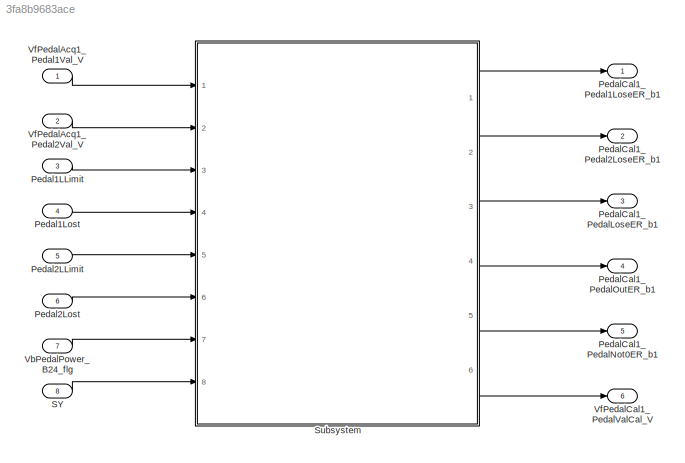
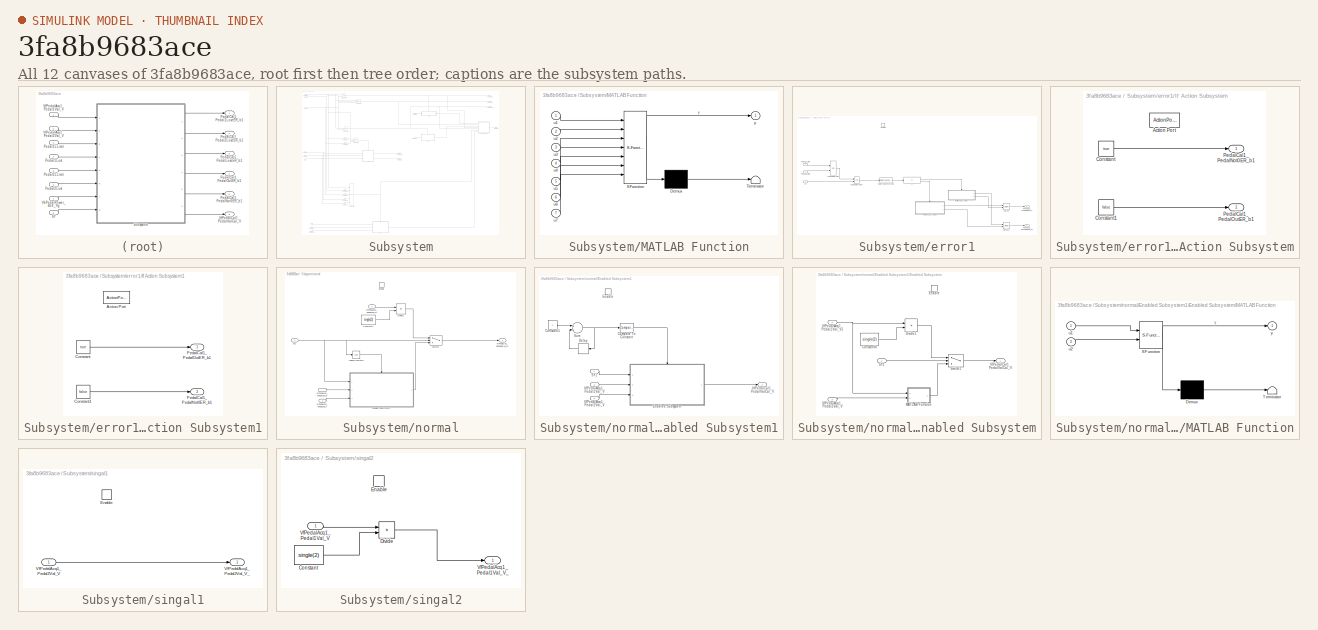
[diagram: thumbnail index - all 12 canvases of the model, root first then tree order]
MODEL slx_3fa8b9683ace
KIND model
CONFIG AbsTol = auto
CONFIG EnableMultiTasking = off
CONFIG FixedStep = auto
CONFIG MaxStep = auto
CONFIG MinStep = auto
CONFIG RelTol = 1e-3
CONFIG SampleTimeConstraint = Unconstrained
CONFIG Solver = FixedStepDiscrete
CONFIG SolverName = FixedStepDiscrete
CONFIG StartTime = 0.0
CONFIG StopTime = 10.0
BLOCK [Inport] Pedal1LLimit
  IconDisplay = Port number
  Port = 3
BLOCK [Inport] Pedal1Lost
  IconDisplay = Port number
  Port = 4
BLOCK [Inport] Pedal2LLimit
  IconDisplay = Port number
  Port = 5
BLOCK [Inport] Pedal2Lost
  IconDisplay = Port number
  Port = 6
BLOCK [Outport] PedalCal1_Pedal1LoseER_b1
  IconDisplay = Port number
BLOCK [Outport] PedalCal1_Pedal2LoseER_b1
  IconDisplay = Port number
  Port = 2
BLOCK [Outport] PedalCal1_PedalLoseER_b1
  IconDisplay = Port number
  Port = 3
BLOCK [Outport] PedalCal1_PedalNot0ER_b1
  IconDisplay = Port number
  Port = 5
BLOCK [Outport] PedalCal1_PedalOutER_b1
  IconDisplay = Port number
  Port = 4
BLOCK [Inport] SY
  IconDisplay = Port number
  Port = 8
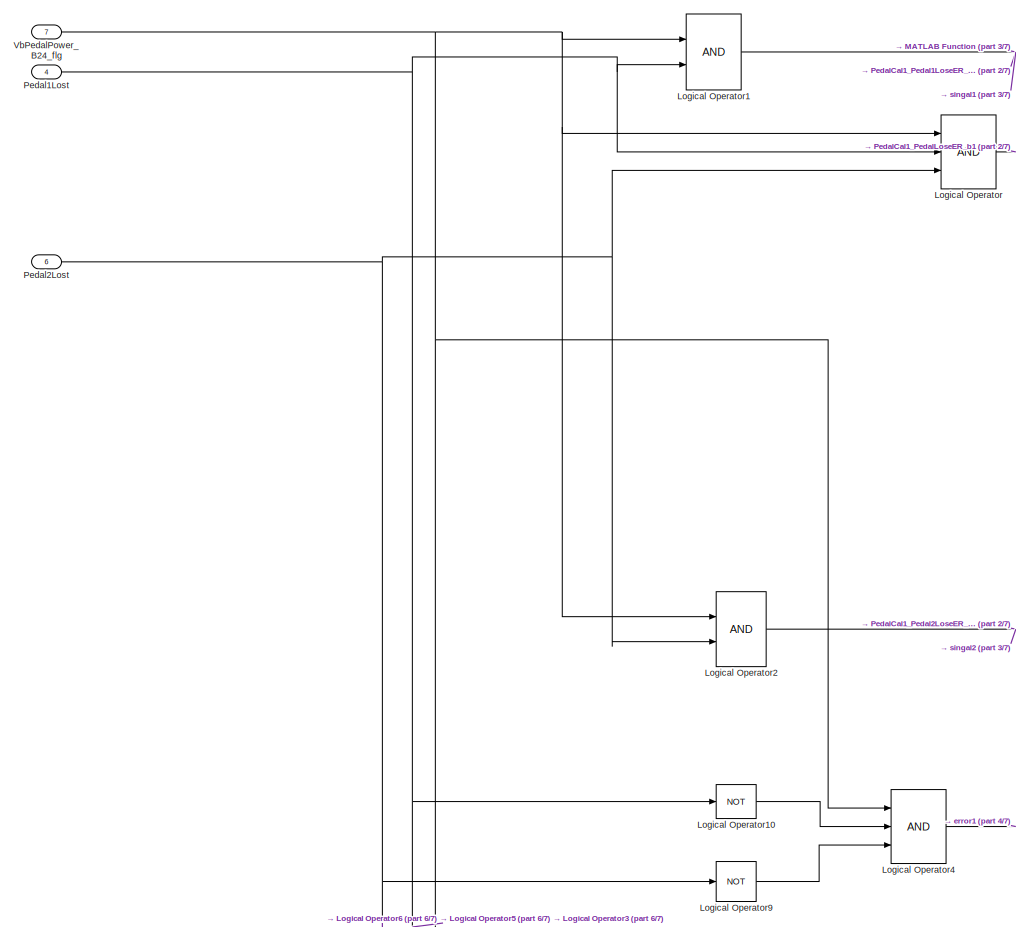
[diagram: Subsystem - part 1/7, top left region]
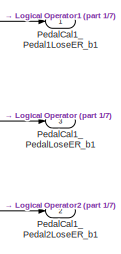
[diagram: Subsystem - part 2/7, top right region]
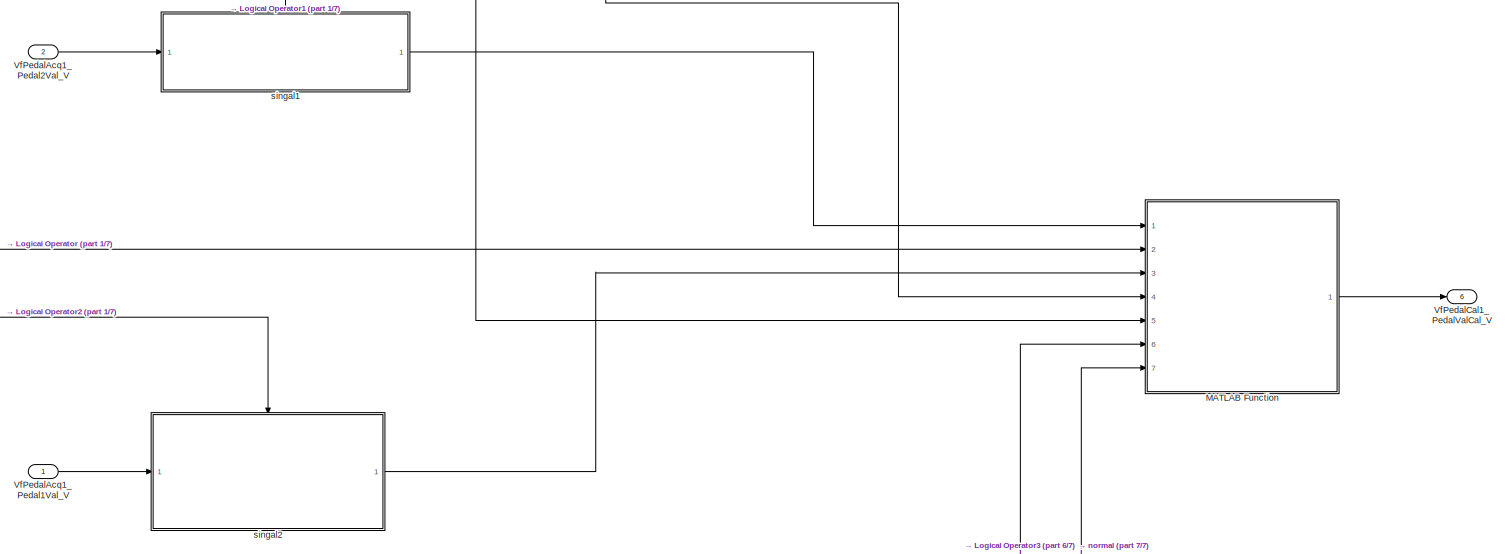
[diagram: Subsystem - part 3/7, top right region]
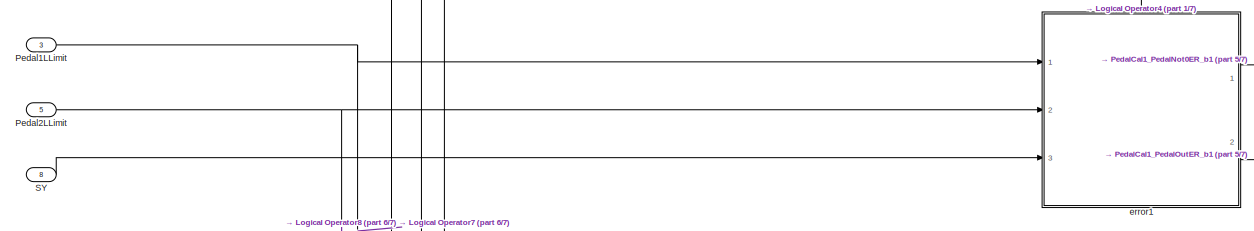
[diagram: Subsystem - part 4/7, middle left region]
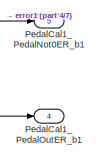
[diagram: Subsystem - part 5/7, central region]
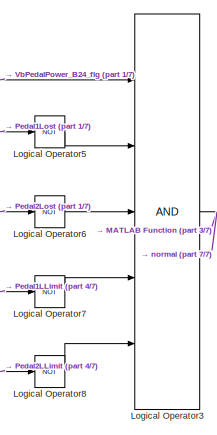
[diagram: Subsystem - part 6/7, bottom left region]
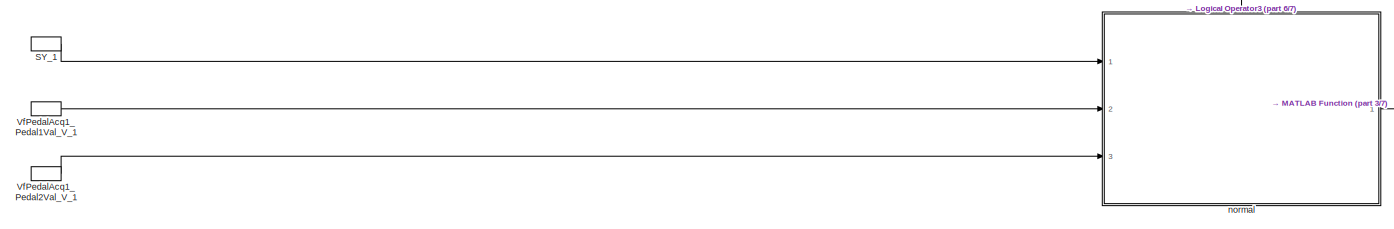
[diagram: Subsystem - part 7/7, bottom left region]
BLOCK [SubSystem] Subsystem
  Ports = [8, 6]
  RequestExecContextInheritance = off
  TreatAsAtomicUnit = on
BLOCK [Logic] Subsystem/Logical Operator
  AllPortsSameDT = off
  Inputs = 3
  OutDataTypeStr = boolean
  Ports = [3, 1]
BLOCK [Logic] Subsystem/Logical Operator1
  AllPortsSameDT = off
  OutDataTypeStr = boolean
  Ports = [2, 1]
BLOCK [Logic] Subsystem/Logical Operator10
  AllPortsSameDT = off
  Inputs = 3
  Operator = NOT
  OutDataTypeStr = boolean
  Ports = [1, 1]
BLOCK [Logic] Subsystem/Logical Operator2
  AllPortsSameDT = off
  OutDataTypeStr = boolean
  Ports = [2, 1]
BLOCK [Logic] Subsystem/Logical Operator3
  AllPortsSameDT = off
  Inputs = 5
  OutDataTypeStr = boolean
  Ports = [5, 1]
BLOCK [Logic] Subsystem/Logical Operator4
  AllPortsSameDT = off
  Inputs = 3
  OutDataTypeStr = boolean
  Ports = [3, 1]
BLOCK [Logic] Subsystem/Logical Operator5
  AllPortsSameDT = off
  Operator = NOT
  OutDataTypeStr = boolean
  Ports = [1, 1]
BLOCK [Logic] Subsystem/Logical Operator6
  AllPortsSameDT = off
  Operator = NOT
  OutDataTypeStr = boolean
  Ports = [1, 1]
BLOCK [Logic] Subsystem/Logical Operator7
  AllPortsSameDT = off
  Operator = NOT
  OutDataTypeStr = boolean
  Ports = [1, 1]
BLOCK [Logic] Subsystem/Logical Operator8
  AllPortsSameDT = off
  Operator = NOT
  OutDataTypeStr = boolean
  Ports = [1, 1]
BLOCK [Logic] Subsystem/Logical Operator9
  AllPortsSameDT = off
  Inputs = 3
  Operator = NOT
  OutDataTypeStr = boolean
  Ports = [1, 1]
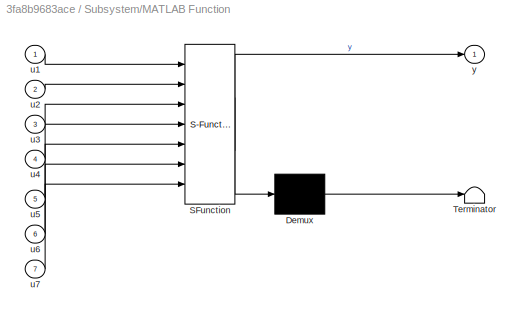
BLOCK [SubSystem] Subsystem/MATLAB Function
  ErrorFcn = Stateflow.Translate.translate
  PermitHierarchicalResolution = ExplicitOnly
  Ports = [7, 1]
  RequestExecContextInheritance = off
  SFBlockType = MATLAB Function
  TreatAsAtomicUnit = on
BLOCK [Demux] Subsystem/MATLAB Function/ Demux 
  Outputs = 1
  Ports = [1, 1]
BLOCK [S-Function] Subsystem/MATLAB Function/ SFunction 
  EnableBusSupport = on
  FunctionName = sf_sfun
  PortCounts = [7 2]
  Ports = [7, 2]
  SFcnIsStateOwnerBlock = off
  SFunctionDeploymentMode = off
  Tag = Stateflow S-Function pedal_req_02 1
BLOCK [Terminator] Subsystem/MATLAB Function/ Terminator 
BLOCK [Inport] Subsystem/MATLAB Function/u1
  IconDisplay = Port number
BLOCK [Inport] Subsystem/MATLAB Function/u2
  IconDisplay = Port number
  Port = 2
BLOCK [Inport] Subsystem/MATLAB Function/u3
  IconDisplay = Port number
  Port = 3
BLOCK [Inport] Subsystem/MATLAB Function/u4
  IconDisplay = Port number
  Port = 4
BLOCK [Inport] Subsystem/MATLAB Function/u5
  IconDisplay = Port number
  Port = 5
BLOCK [Inport] Subsystem/MATLAB Function/u6
  IconDisplay = Port number
  Port = 6
BLOCK [Inport] Subsystem/MATLAB Function/u7
  IconDisplay = Port number
  Port = 7
BLOCK [Outport] Subsystem/MATLAB Function/y
  IconDisplay = Port number
BLOCK [Inport] Subsystem/Pedal1LLimit
  IconDisplay = Port number
  Port = 3
BLOCK [Inport] Subsystem/Pedal1Lost
  IconDisplay = Port number
  Port = 4
BLOCK [Inport] Subsystem/Pedal2LLimit
  IconDisplay = Port number
  Port = 5
BLOCK [Inport] Subsystem/Pedal2Lost
  IconDisplay = Port number
  Port = 6
BLOCK [Outport] Subsystem/PedalCal1_Pedal1LoseER_b1
  IconDisplay = Port number
BLOCK [Outport] Subsystem/PedalCal1_Pedal2LoseER_b1
  IconDisplay = Port number
  Port = 2
BLOCK [Outport] Subsystem/PedalCal1_PedalLoseER_b1
  IconDisplay = Port number
  Port = 3
BLOCK [Outport] Subsystem/PedalCal1_PedalNot0ER_b1
  IconDisplay = Port number
  Port = 5
BLOCK [Outport] Subsystem/PedalCal1_PedalOutER_b1
  IconDisplay = Port number
  Port = 4
BLOCK [Inport] Subsystem/SY
  IconDisplay = Port number
  Port = 8
BLOCK [InportShadow] Subsystem/SY_1
  IconDisplay = Port number
  Port = 8
BLOCK [Inport] Subsystem/VbPedalPower_B24_flg
  IconDisplay = Port number
  Port = 7
BLOCK [Inport] Subsystem/VfPedalAcq1_Pedal1Val_V
  IconDisplay = Port number
BLOCK [InportShadow] Subsystem/VfPedalAcq1_Pedal1Val_V_1
  IconDisplay = Port number
BLOCK [Inport] Subsystem/VfPedalAcq1_Pedal2Val_V
  IconDisplay = Port number
  Port = 2
BLOCK [InportShadow] Subsystem/VfPedalAcq1_Pedal2Val_V_1
  IconDisplay = Port number
  Port = 2
BLOCK [Outport] Subsystem/VfPedalCal1_PedalValCal_V
  IconDisplay = Port number
  Port = 6
BLOCK [SubSystem] Subsystem/error1
  Ports = [3, 2, 1]
  RequestExecContextInheritance = off
  TreatAsAtomicUnit = on
BLOCK [DataTypeConversion] Subsystem/error1/Data Type Conversion
  OutDataTypeStr = int8
  RndMeth = Floor
  SaturateOnIntegerOverflow = off
BLOCK [EnablePort] Subsystem/error1/Enable
  Ports = []
BLOCK [If] Subsystem/error1/If
  IfExpression = u1 == 1
  Ports = [1, 2]
BLOCK [SubSystem] Subsystem/error1/If Action Subsystem
  Ports = [0, 2, 0, 0, 0, 0, 0, 1]
  RequestExecContextInheritance = off
  TreatAsAtomicUnit = on
BLOCK [ActionPort] Subsystem/error1/If Action Subsystem/Action Port
  ActionType = then
BLOCK [Constant] Subsystem/error1/If Action Subsystem/Constant
  Value = true
BLOCK [Constant] Subsystem/error1/If Action Subsystem/Constant1
  Value = false
BLOCK [Outport] Subsystem/error1/If Action Subsystem/PedalCal1_PedalNot0ER_b1
  IconDisplay = Port number
BLOCK [Outport] Subsystem/error1/If Action Subsystem/PedalCal1_PedalOutER_b1
  IconDisplay = Port number
  Port = 2
BLOCK [SubSystem] Subsystem/error1/If Action Subsystem1
  Ports = [0, 2, 0, 0, 0, 0, 0, 1]
  RequestExecContextInheritance = off
  TreatAsAtomicUnit = on
BLOCK [ActionPort] Subsystem/error1/If Action Subsystem1/Action Port
  ActionType = else
BLOCK [Constant] Subsystem/error1/If Action Subsystem1/Constant
  Value = true
BLOCK [Constant] Subsystem/error1/If Action Subsystem1/Constant1
  Value = false
BLOCK [Outport] Subsystem/error1/If Action Subsystem1/PedalCal1_PedalNot0ER_b1
  IconDisplay = Port number
  Port = 2
BLOCK [Outport] Subsystem/error1/If Action Subsystem1/PedalCal1_PedalOutER_b1
  IconDisplay = Port number
BLOCK [Logic] Subsystem/error1/Logical Operator
  AllPortsSameDT = off
  Operator = OR
  OutDataTypeStr = boolean
  Ports = [2, 1]
BLOCK [Logic] Subsystem/error1/Logical Operator1
  AllPortsSameDT = off
  OutDataTypeStr = boolean
  Ports = [2, 1]
BLOCK [Merge] Subsystem/error1/Merge
  Ports = [2, 1]
BLOCK [Merge] Subsystem/error1/Merge1
  Ports = [2, 1]
BLOCK [Inport] Subsystem/error1/Pedal1LLimit
  IconDisplay = Port number
BLOCK [Inport] Subsystem/error1/Pedal2LLimit
  IconDisplay = Port number
  Port = 2
BLOCK [Outport] Subsystem/error1/PedalCal1_PedalNot0ER_b1
  IconDisplay = Port number
BLOCK [Outport] Subsystem/error1/PedalCal1_PedalOutER_b1
  IconDisplay = Port number
  Port = 2
BLOCK [Inport] Subsystem/error1/SY
  IconDisplay = Port number
  Port = 3
BLOCK [SubSystem] Subsystem/normal
  Ports = [3, 1, 1]
  RequestExecContextInheritance = off
  TreatAsAtomicUnit = on
BLOCK [Constant] Subsystem/normal/Constant4
  Value = single(2)
BLOCK [Product] Subsystem/normal/Divide1
  InputSameDT = off
  Inputs = */
  OutDataTypeStr = Inherit: Inherit via internal rule
  Ports = [2, 1]
  RndMeth = Floor
  SaturateOnIntegerOverflow = off
BLOCK [EnablePort] Subsystem/normal/Enable
  Ports = []
BLOCK [SubSystem] Subsystem/normal/Enabled Subsystem1
  Ports = [3, 1, 1]
  RequestExecContextInheritance = off
  TreatAsAtomicUnit = on
BLOCK [Reference] Subsystem/normal/Enabled Subsystem1/Compare To Constant  REF=simulink/Logic and Bit
Operations/Compare
To Constant
  Ports = [1, 1]
  SourceBlock = simulink/Logic and Bit\nOperations/Compare\nTo Constant
  SourceProductBaseCode = SL
  SourceProductName = Simulink
  SourceType = Compare To Constant
BLOCK [Constant] Subsystem/normal/Enabled Subsystem1/Constant1
BLOCK [Delay] Subsystem/normal/Enabled Subsystem1/Delay
  DelayLength = 1
  InitialCondition = 0
  InputPortMap = u0
  Ports = [1, 1]
BLOCK [EnablePort] Subsystem/normal/Enabled Subsystem1/Enable
  Ports = []
BLOCK [SubSystem] Subsystem/normal/Enabled Subsystem1/Enabled Subsystem
  Ports = [3, 1, 1]
  RequestExecContextInheritance = off
  TreatAsAtomicUnit = on
BLOCK [Constant] Subsystem/normal/Enabled Subsystem1/Enabled Subsystem/Constant4
  Value = single(2)
BLOCK [Product] Subsystem/normal/Enabled Subsystem1/Enabled Subsystem/Divide1
  InputSameDT = off
  Inputs = */
  OutDataTypeStr = Inherit: Inherit via internal rule
  Ports = [2, 1]
  RndMeth = Floor
  SaturateOnIntegerOverflow = off
BLOCK [EnablePort] Subsystem/normal/Enabled Subsystem1/Enabled Subsystem/Enable
  Ports = []
BLOCK [SubSystem] Subsystem/normal/Enabled Subsystem1/Enabled Subsystem/MATLAB Function
  ErrorFcn = Stateflow.Translate.translate
  PermitHierarchicalResolution = ExplicitOnly
  Ports = [2, 1]
  RequestExecContextInheritance = off
  SFBlockType = MATLAB Function
  TreatAsAtomicUnit = on
BLOCK [Demux] Subsystem/normal/Enabled Subsystem1/Enabled Subsystem/MATLAB Function/ Demux 
  Outputs = 1
  Ports = [1, 1]
BLOCK [S-Function] Subsystem/normal/Enabled Subsystem1/Enabled Subsystem/MATLAB Function/ SFunction 
  EnableBusSupport = on
  FunctionName = sf_sfun
  PortCounts = [2 2]
  Ports = [2, 2]
  SFcnIsStateOwnerBlock = off
  SFunctionDeploymentMode = off
  Tag = Stateflow S-Function pedal_req_02 3
BLOCK [Terminator] Subsystem/normal/Enabled Subsystem1/Enabled Subsystem/MATLAB Function/ Terminator 
BLOCK [Inport] Subsystem/normal/Enabled Subsystem1/Enabled Subsystem/MATLAB Function/u1
  IconDisplay = Port number
BLOCK [Inport] Subsystem/normal/Enabled Subsystem1/Enabled Subsystem/MATLAB Function/u2
  IconDisplay = Port number
  Port = 2
BLOCK [Outport] Subsystem/normal/Enabled Subsystem1/Enabled Subsystem/MATLAB Function/y
  IconDisplay = Port number
BLOCK [Inport] Subsystem/normal/Enabled Subsystem1/Enabled Subsystem/SY1
  IconDisplay = Port number
BLOCK [Switch] Subsystem/normal/Enabled Subsystem1/Enabled Subsystem/Switch1
  Criteria = u2 > Threshold
  InputSameDT = off
  SaturateOnIntegerOverflow = off
BLOCK [Inport] Subsystem/normal/Enabled Subsystem1/Enabled Subsystem/VfPedalAcq1_Pedal1Val_V1
  IconDisplay = Port number
  Port = 2
BLOCK [Inport] Subsystem/normal/Enabled Subsystem1/Enabled Subsystem/VfPedalAcq1_Pedal2Val_V
  IconDisplay = Port number
  Port = 3
BLOCK [Outport] Subsystem/normal/Enabled Subsystem1/Enabled Subsystem/VfPedalCal1_PedalValCal_V
  IconDisplay = Port number
BLOCK [Inport] Subsystem/normal/Enabled Subsystem1/SY1
  IconDisplay = Port number
BLOCK [Sum] Subsystem/normal/Enabled Subsystem1/Sum
  InputSameDT = off
  OutDataTypeStr = Inherit: Inherit via internal rule
  Ports = [2, 1]
  SaturateOnIntegerOverflow = off
BLOCK [Inport] Subsystem/normal/Enabled Subsystem1/VfPedalAcq1_Pedal1Val_V
  IconDisplay = Port number
  Port = 2
BLOCK [Inport] Subsystem/normal/Enabled Subsystem1/VfPedalAcq1_Pedal2Val_V
  IconDisplay = Port number
  Port = 3
BLOCK [Outport] Subsystem/normal/Enabled Subsystem1/VfPedalCal1_PedalValCal_V
  IconDisplay = Port number
BLOCK [Logic] Subsystem/normal/Logical Operator
  AllPortsSameDT = off
  Operator = NOT
  OutDataTypeStr = boolean
  Ports = [1, 1]
BLOCK [Inport] Subsystem/normal/SY1
  IconDisplay = Port number
BLOCK [Switch] Subsystem/normal/Switch1
  InputSameDT = off
  SaturateOnIntegerOverflow = off
  Threshold = 1
BLOCK [Inport] Subsystem/normal/VfPedalAcq1_Pedal1Val_V1
  IconDisplay = Port number
  Port = 2
BLOCK [InportShadow] Subsystem/normal/VfPedalAcq1_Pedal1Val_V2
  IconDisplay = Port number
  Port = 2
BLOCK [Inport] Subsystem/normal/VfPedalAcq1_Pedal2Val_V
  IconDisplay = Port number
  Port = 3
BLOCK [Outport] Subsystem/normal/VfPedalCal1_PedalValCal_V1
  IconDisplay = Port number
BLOCK [SubSystem] Subsystem/singal1
  Ports = [1, 1, 1]
  RequestExecContextInheritance = off
  TreatAsAtomicUnit = on
BLOCK [EnablePort] Subsystem/singal1/Enable
  Ports = []
BLOCK [Inport] Subsystem/singal1/VfPedalAcq1_Pedal2Val_V
  IconDisplay = Port number
BLOCK [Outport] Subsystem/singal1/VfPedalAcq1_Pedal2Val_V_
  IconDisplay = Port number
BLOCK [SubSystem] Subsystem/singal2
  Ports = [1, 1, 1]
  RequestExecContextInheritance = off
  TreatAsAtomicUnit = on
BLOCK [Constant] Subsystem/singal2/Constant
  Value = single(2)
BLOCK [Product] Subsystem/singal2/Divide
  InputSameDT = off
  Inputs = */
  OutDataTypeStr = Inherit: Inherit via internal rule
  Ports = [2, 1]
  RndMeth = Floor
  SaturateOnIntegerOverflow = off
BLOCK [EnablePort] Subsystem/singal2/Enable
  Ports = []
BLOCK [Inport] Subsystem/singal2/VfPedalAcq1_Pedal1Val_V
  IconDisplay = Port number
BLOCK [Outport] Subsystem/singal2/VfPedalAcq1_Pedal1Val_V_
  IconDisplay = Port number
BLOCK [Inport] VbPedalPower_B24_flg
  IconDisplay = Port number
  Port = 7
BLOCK [Inport] VfPedalAcq1_Pedal1Val_V
  IconDisplay = Port number
BLOCK [Inport] VfPedalAcq1_Pedal2Val_V
  IconDisplay = Port number
  Port = 2
BLOCK [Outport] VfPedalCal1_PedalValCal_V
  IconDisplay = Port number
  Port = 6
LINE Pedal1LLimit:1 -> Subsystem:3
LINE Pedal1Lost:1 -> Subsystem:4
LINE Pedal2LLimit:1 -> Subsystem:5
LINE Pedal2Lost:1 -> Subsystem:6
LINE SY:1 -> Subsystem:8
LINE Subsystem/Logical Operator10:1 -> Subsystem/Logical Operator4:2
NET Subsystem/Logical Operator1:1 -> Subsystem/MATLAB Function:4, Subsystem/PedalCal1_Pedal1LoseER_b1:1, Subsystem/singal1:enable
NET Subsystem/Logical Operator2:1 -> Subsystem/MATLAB Function:5, Subsystem/PedalCal1_Pedal2LoseER_b1:1, Subsystem/singal2:enable
NET Subsystem/Logical Operator3:1 -> Subsystem/MATLAB Function:6, Subsystem/normal:enable
LINE Subsystem/Logical Operator4:1 -> Subsystem/error1:enable
LINE Subsystem/Logical Operator5:1 -> Subsystem/Logical Operator3:2
LINE Subsystem/Logical Operator6:1 -> Subsystem/Logical Operator3:3
LINE Subsystem/Logical Operator7:1 -> Subsystem/Logical Operator3:4
LINE Subsystem/Logical Operator8:1 -> Subsystem/Logical Operator3:5
LINE Subsystem/Logical Operator9:1 -> Subsystem/Logical Operator4:3
NET Subsystem/Logical Operator:1 -> Subsystem/MATLAB Function:2, Subsystem/PedalCal1_PedalLoseER_b1:1
LINE Subsystem/MATLAB Function:1 -> Subsystem/VfPedalCal1_PedalValCal_V:1
NET Subsystem/Pedal1LLimit:1 -> Subsystem/Logical Operator7:1, Subsystem/error1:1
NET Subsystem/Pedal1Lost:1 -> Subsystem/Logical Operator10:1, Subsystem/Logical Operator1:2, Subsystem/Logical Operator5:1, Subsystem/Logical Operator:2
NET Subsystem/Pedal2LLimit:1 -> Subsystem/Logical Operator8:1, Subsystem/error1:2
NET Subsystem/Pedal2Lost:1 -> Subsystem/Logical Operator2:2, Subsystem/Logical Operator6:1, Subsystem/Logical Operator9:1, Subsystem/Logical Operator:3
LINE Subsystem/SY:1 -> Subsystem/error1:3
LINE Subsystem/SY_1:1 -> Subsystem/normal:1
NET Subsystem/VbPedalPower_B24_flg:1 -> Subsystem/Logical Operator1:1, Subsystem/Logical Operator2:1, Subsystem/Logical Operator3:1, Subsystem/Logical Operator4:1, Subsystem/Logical Operator:1
LINE Subsystem/VfPedalAcq1_Pedal1Val_V:1 -> Subsystem/singal2:1
LINE Subsystem/VfPedalAcq1_Pedal1Val_V_1:1 -> Subsystem/normal:2
LINE Subsystem/VfPedalAcq1_Pedal2Val_V:1 -> Subsystem/singal1:1
LINE Subsystem/VfPedalAcq1_Pedal2Val_V_1:1 -> Subsystem/normal:3
LINE Subsystem/error1/Data Type Conversion:1 -> Subsystem/error1/If:1
LINE Subsystem/error1/If Action Subsystem/Constant1:1 -> Subsystem/error1/If Action Subsystem/PedalCal1_PedalOutER_b1:1
LINE Subsystem/error1/If Action Subsystem/Constant:1 -> Subsystem/error1/If Action Subsystem/PedalCal1_PedalNot0ER_b1:1
LINE Subsystem/error1/If Action Subsystem1/Constant1:1 -> Subsystem/error1/If Action Subsystem1/PedalCal1_PedalNot0ER_b1:1
LINE Subsystem/error1/If Action Subsystem1/Constant:1 -> Subsystem/error1/If Action Subsystem1/PedalCal1_PedalOutER_b1:1
LINE Subsystem/error1/If Action Subsystem1:1 -> Subsystem/error1/Merge:1
LINE Subsystem/error1/If Action Subsystem1:2 -> Subsystem/error1/Merge1:2
LINE Subsystem/error1/If Action Subsystem:1 -> Subsystem/error1/Merge1:1
LINE Subsystem/error1/If Action Subsystem:2 -> Subsystem/error1/Merge:2
LINE Subsystem/error1/If:1 -> Subsystem/error1/If Action Subsystem:ifaction
LINE Subsystem/error1/If:2 -> Subsystem/error1/If Action Subsystem1:ifaction
LINE Subsystem/error1/Logical Operator1:1 -> Subsystem/error1/Data Type Conversion:1
LINE Subsystem/error1/Logical Operator:1 -> Subsystem/error1/Logical Operator1:1
LINE Subsystem/error1/Merge1:1 -> Subsystem/error1/PedalCal1_PedalNot0ER_b1:1
LINE Subsystem/error1/Merge:1 -> Subsystem/error1/PedalCal1_PedalOutER_b1:1
LINE Subsystem/error1/Pedal1LLimit:1 -> Subsystem/error1/Logical Operator:1
LINE Subsystem/error1/Pedal2LLimit:1 -> Subsystem/error1/Logical Operator:2
LINE Subsystem/error1/SY:1 -> Subsystem/error1/Logical Operator1:2
LINE Subsystem/error1:1 -> Subsystem/PedalCal1_PedalNot0ER_b1:1
LINE Subsystem/error1:2 -> Subsystem/PedalCal1_PedalOutER_b1:1
LINE Subsystem/normal/Constant4:1 -> Subsystem/normal/Divide1:2
LINE Subsystem/normal/Divide1:1 -> Subsystem/normal/Switch1:1
LINE Subsystem/normal/Enabled Subsystem1/Compare To Constant:1 -> Subsystem/normal/Enabled Subsystem1/Enabled Subsystem:enable
LINE Subsystem/normal/Enabled Subsystem1/Constant1:1 -> Subsystem/normal/Enabled Subsystem1/Sum:1
LINE Subsystem/normal/Enabled Subsystem1/Delay:1 -> Subsystem/normal/Enabled Subsystem1/Sum:2
LINE Subsystem/normal/Enabled Subsystem1/Enabled Subsystem/Constant4:1 -> Subsystem/normal/Enabled Subsystem1/Enabled Subsystem/Divide1:2
LINE Subsystem/normal/Enabled Subsystem1/Enabled Subsystem/Divide1:1 -> Subsystem/normal/Enabled Subsystem1/Enabled Subsystem/Switch1:1
LINE Subsystem/normal/Enabled Subsystem1/Enabled Subsystem/MATLAB Function:1 -> Subsystem/normal/Enabled Subsystem1/Enabled Subsystem/Switch1:3
LINE Subsystem/normal/Enabled Subsystem1/Enabled Subsystem/SY1:1 -> Subsystem/normal/Enabled Subsystem1/Enabled Subsystem/Switch1:2
LINE Subsystem/normal/Enabled Subsystem1/Enabled Subsystem/Switch1:1 -> Subsystem/normal/Enabled Subsystem1/Enabled Subsystem/VfPedalCal1_PedalValCal_V:1
NET Subsystem/normal/Enabled Subsystem1/Enabled Subsystem/VfPedalAcq1_Pedal1Val_V1:1 -> Subsystem/normal/Enabled Subsystem1/Enabled Subsystem/Divide1:1, Subsystem/normal/Enabled Subsystem1/Enabled Subsystem/MATLAB Function:1
LINE Subsystem/normal/Enabled Subsystem1/Enabled Subsystem/VfPedalAcq1_Pedal2Val_V:1 -> Subsystem/normal/Enabled Subsystem1/Enabled Subsystem/MATLAB Function:2
LINE Subsystem/normal/Enabled Subsystem1/Enabled Subsystem:1 -> Subsystem/normal/Enabled Subsystem1/VfPedalCal1_PedalValCal_V:1
LINE Subsystem/normal/Enabled Subsystem1/SY1:1 -> Subsystem/normal/Enabled Subsystem1/Enabled Subsystem:1
NET Subsystem/normal/Enabled Subsystem1/Sum:1 -> Subsystem/normal/Enabled Subsystem1/Compare To Constant:1, Subsystem/normal/Enabled Subsystem1/Delay:1
LINE Subsystem/normal/Enabled Subsystem1/VfPedalAcq1_Pedal1Val_V:1 -> Subsystem/normal/Enabled Subsystem1/Enabled Subsystem:2
LINE Subsystem/normal/Enabled Subsystem1/VfPedalAcq1_Pedal2Val_V:1 -> Subsystem/normal/Enabled Subsystem1/Enabled Subsystem:3
LINE Subsystem/normal/Enabled Subsystem1:1 -> Subsystem/normal/Switch1:3
LINE Subsystem/normal/Logical Operator:1 -> Subsystem/normal/Enabled Subsystem1:enable
NET Subsystem/normal/SY1:1 -> Subsystem/normal/Enabled Subsystem1:1, Subsystem/normal/Logical Operator:1, Subsystem/normal/Switch1:2
LINE Subsystem/normal/Switch1:1 -> Subsystem/normal/VfPedalCal1_PedalValCal_V1:1
LINE Subsystem/normal/VfPedalAcq1_Pedal1Val_V1:1 -> Subsystem/normal/Divide1:1
LINE Subsystem/normal/VfPedalAcq1_Pedal1Val_V2:1 -> Subsystem/normal/Enabled Subsystem1:2
LINE Subsystem/normal/VfPedalAcq1_Pedal2Val_V:1 -> Subsystem/normal/Enabled Subsystem1:3
LINE Subsystem/normal:1 -> Subsystem/MATLAB Function:7
LINE Subsystem/singal1/VfPedalAcq1_Pedal2Val_V:1 -> Subsystem/singal1/VfPedalAcq1_Pedal2Val_V_:1
LINE Subsystem/singal1:1 -> Subsystem/MATLAB Function:1
LINE Subsystem/singal2/Constant:1 -> Subsystem/singal2/Divide:2
LINE Subsystem/singal2/Divide:1 -> Subsystem/singal2/VfPedalAcq1_Pedal1Val_V_:1
LINE Subsystem/singal2/VfPedalAcq1_Pedal1Val_V:1 -> Subsystem/singal2/Divide:1
LINE Subsystem/singal2:1 -> Subsystem/MATLAB Function:3
LINE Subsystem:1 -> PedalCal1_Pedal1LoseER_b1:1
LINE Subsystem:2 -> PedalCal1_Pedal2LoseER_b1:1
LINE Subsystem:3 -> PedalCal1_PedalLoseER_b1:1
LINE Subsystem:4 -> PedalCal1_PedalOutER_b1:1
LINE Subsystem:5 -> PedalCal1_PedalNot0ER_b1:1
LINE Subsystem:6 -> VfPedalCal1_PedalValCal_V:1
LINE VbPedalPower_B24_flg:1 -> Subsystem:7
LINE VfPedalAcq1_Pedal1Val_V:1 -> Subsystem:1
LINE VfPedalAcq1_Pedal2Val_V:1 -> Subsystem:2
note: NET lines group one-source signal fan-out (src -> all destinations, sorted); 1:1 wires keep LINE
CHART Subsystem/MATLAB Function states=1 transitions=1
  STATE_LABEL 'eML_blk_kernel()'
  STATE_LABEL 'SCRIPT:\nfunction y = fcn(u1,u2,u3,u4,u5,u6,u7)\n%#codegen\nif(u2==1)\n    y=0;\nelseif(u4==1)\n    y=u1;\nelseif(u5==1)\n    y=u3;\nelseif(u6==1)\n    y=u7;\nelse\n    y=0;\nend'
CHART Subsystem/normal/Enabled
Subsystem1/Enabled
Subsystem/MATLAB Function states=1 transitions=1
  STATE_LABEL 'eML_blk_kernel()'
  STATE_LABEL 'SCRIPT:\nfunction y = fcn(u1,u2)\n%#codegen\nu12=u1/2;\nif(u12>u2)\n    y=u2;\nelse\n    y=u12;\nend'
